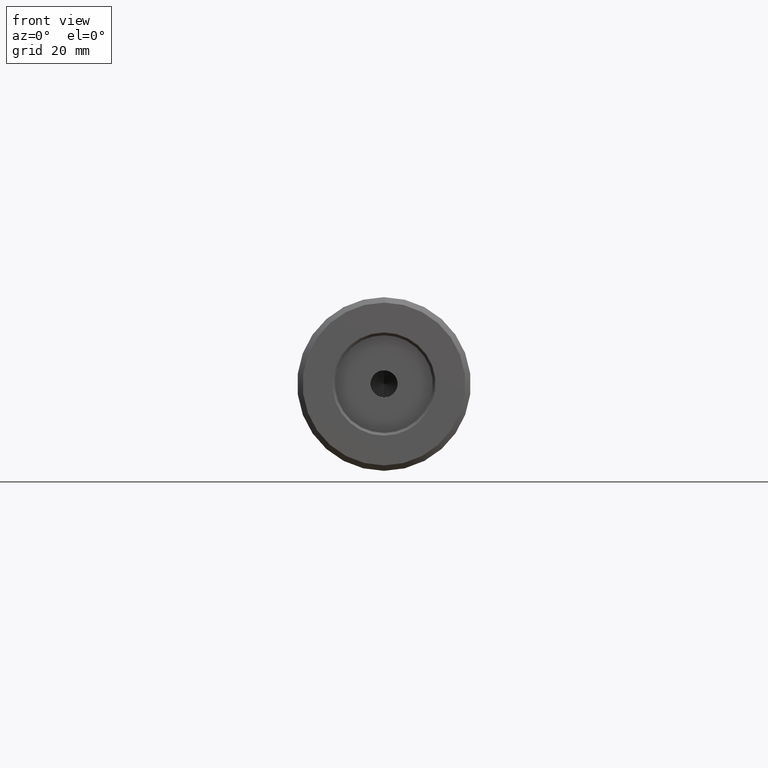
[diagram: clean part render]
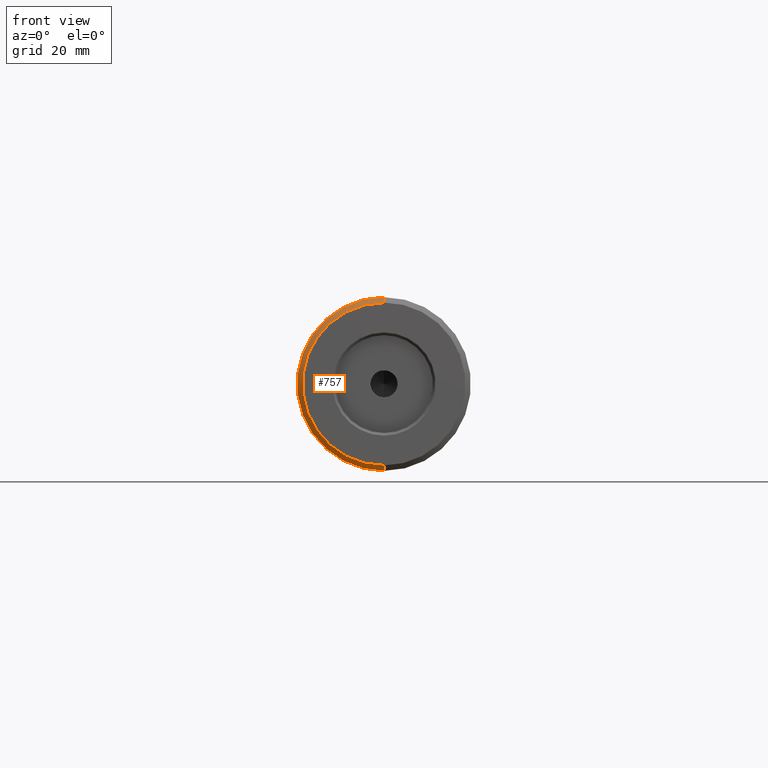
[diagram: same view with one face highlighted and labeled with its STEP entity id]
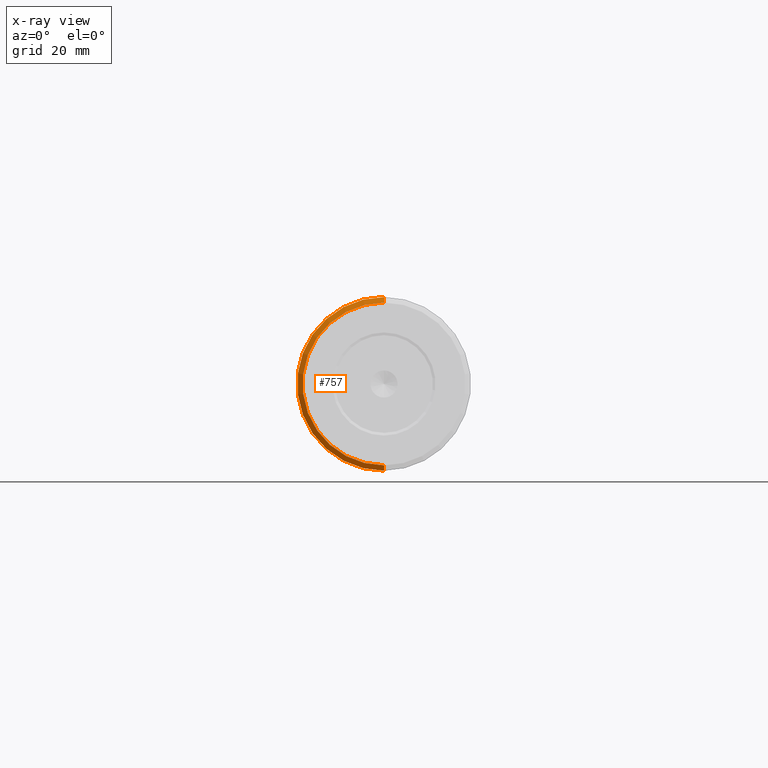
[diagram: x-ray of the same camera — body ghosted, the highlighted face saturated]
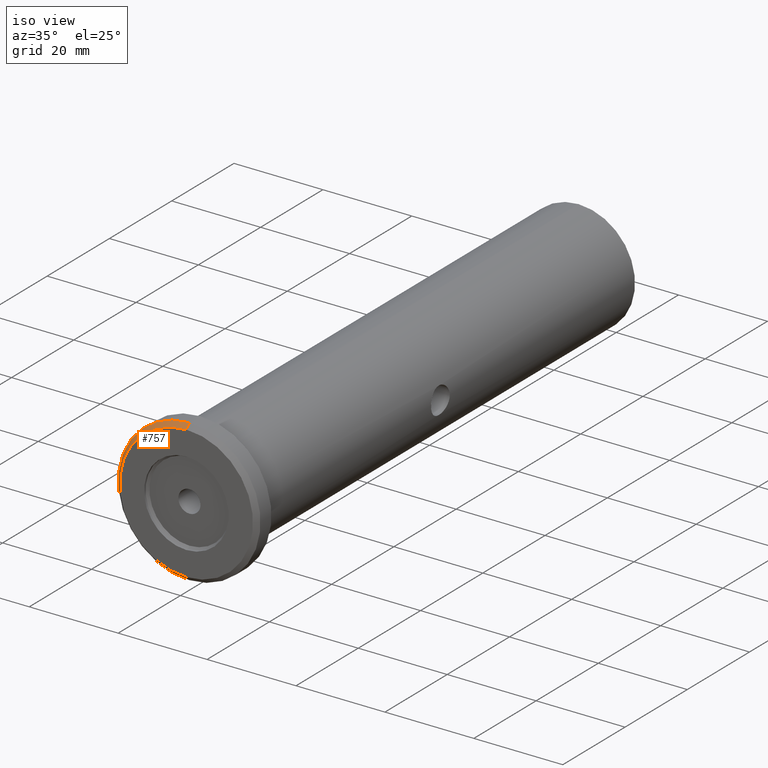
[diagram: same view with one face highlighted and labeled with its STEP entity id]
A machine part, front view. The second image highlights one B-rep face of the part: STEP entity #757.
The next image is the same camera in x-ray: the body ghosted, the highlighted face saturated — about 0% of this face is hidden behind the body in this view.
A second angle (iso view) of the same face is appended — the face is thin or edge-on in the first view.
In plain terms, the highlighted conical surface has half-angle 45 deg.
Its self-contained STEP definition (entity closure, byte-faithful):
#66 = VECTOR ( 'NONE', #649, 1000.000000000000000 ) ;
#81 = ORIENTED_EDGE ( 'NONE', *, *, #1019, .F. ) ;
#101 = CIRCLE ( 'NONE', #1001, 16.00000000000000700 ) ;
#150 = VERTEX_POINT ( 'NONE', #169 ) ;
#155 = DIRECTION ( 'NONE',  ( -0.0000000000000000000, 1.000000000000000000, 0.0000000000000000000 ) ) ;
#169 = CARTESIAN_POINT ( 'NONE',  ( 0.0000000000000000000, -38.09999999999999400, 15.00000000000000900 ) ) ;
#206 = CARTESIAN_POINT ( 'NONE',  ( 1.959434878635766300E-015, -37.09999999999999400, -16.00000000000000700 ) ) ;
#251 = ORIENTED_EDGE ( 'NONE', *, *, #708, .T. ) ;
#262 = EDGE_CURVE ( 'NONE', #150, #468, #984, .T. ) ;
#273 = CONICAL_SURFACE ( 'NONE', #456, 16.00000000000000700, 0.7853981633974473900 ) ;
#292 = ORIENTED_EDGE ( 'NONE', *, *, #766, .F. ) ;
#326 = FACE_OUTER_BOUND ( 'NONE', #870, .T. ) ;
#351 = CIRCLE ( 'NONE', #781, 15.00000000000000900 ) ;
#352 = VECTOR ( 'NONE', #765, 1000.000000000000000 ) ;
#364 = DIRECTION ( 'NONE',  ( 0.0000000000000000000, 0.0000000000000000000, 1.000000000000000000 ) ) ;
#393 = VERTEX_POINT ( 'NONE', #902 ) ;
#440 = CARTESIAN_POINT ( 'NONE',  ( 0.0000000000000000000, -37.09999999999999400, 0.0000000000000000000 ) ) ;
#456 = AXIS2_PLACEMENT_3D ( 'NONE', #440, #637, #553 ) ;
#458 = CARTESIAN_POINT ( 'NONE',  ( 0.0000000000000000000, -37.09999999999999400, 0.0000000000000000000 ) ) ;
#468 = VERTEX_POINT ( 'NONE', #982 ) ;
#470 = DIRECTION ( 'NONE',  ( 0.0000000000000000000, 0.0000000000000000000, 1.000000000000000000 ) ) ;
#553 = DIRECTION ( 'NONE',  ( 0.0000000000000000000, 0.0000000000000000000, 1.000000000000000000 ) ) ;
#564 = CARTESIAN_POINT ( 'NONE',  ( 1.898202538678398700E-015, -38.09999999999999400, -15.00000000000000900 ) ) ;
#637 = DIRECTION ( 'NONE',  ( -0.0000000000000000000, 1.000000000000000000, 0.0000000000000000000 ) ) ;
#649 = DIRECTION ( 'NONE',  ( 8.659560562354925500E-017, 0.7071067811865482400, -0.7071067811865469100 ) ) ;
#658 = CARTESIAN_POINT ( 'NONE',  ( 0.0000000000000000000, -38.09999999999999400, 0.0000000000000000000 ) ) ;
#708 = EDGE_CURVE ( 'NONE', #1017, #150, #351, .T. ) ;
#721 = LINE ( 'NONE', #206, #66 ) ;
#732 = ORIENTED_EDGE ( 'NONE', *, *, #262, .T. ) ;
#757 = ADVANCED_FACE ( 'NONE', ( #326 ), #273, .T. ) ;
#765 = DIRECTION ( 'NONE',  ( 0.0000000000000000000, 0.7071067811865482400, 0.7071067811865469100 ) ) ;
#766 = EDGE_CURVE ( 'NONE', #393, #468, #101, .T. ) ;
#768 = CARTESIAN_POINT ( 'NONE',  ( 0.0000000000000000000, -37.09999999999999400, 16.00000000000000700 ) ) ;
#781 = AXIS2_PLACEMENT_3D ( 'NONE', #658, #155, #470 ) ;
#870 = EDGE_LOOP ( 'NONE', ( #81, #251, #732, #292 ) ) ;
#902 = CARTESIAN_POINT ( 'NONE',  ( 1.959434878635766300E-015, -37.09999999999999400, -16.00000000000000700 ) ) ;
#949 = DIRECTION ( 'NONE',  ( 0.0000000000000000000, 1.000000000000000000, 0.0000000000000000000 ) ) ;
#982 = CARTESIAN_POINT ( 'NONE',  ( 0.0000000000000000000, -37.09999999999999400, 16.00000000000000700 ) ) ;
#984 = LINE ( 'NONE', #768, #352 ) ;
#1001 = AXIS2_PLACEMENT_3D ( 'NONE', #458, #949, #364 ) ;
#1017 = VERTEX_POINT ( 'NONE', #564 ) ;
#1019 = EDGE_CURVE ( 'NONE', #1017, #393, #721, .T. ) ;